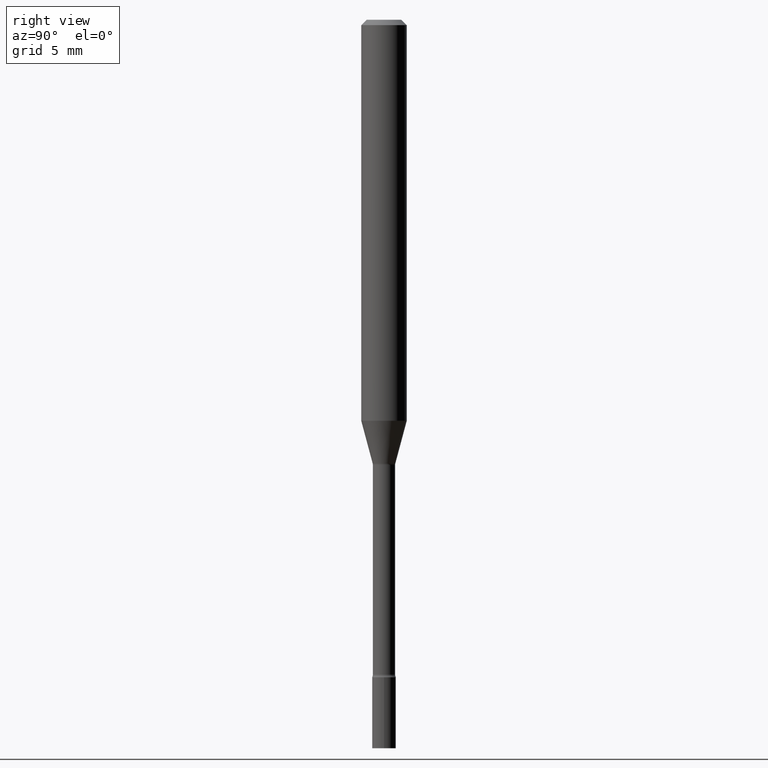
[diagram: clean part render]
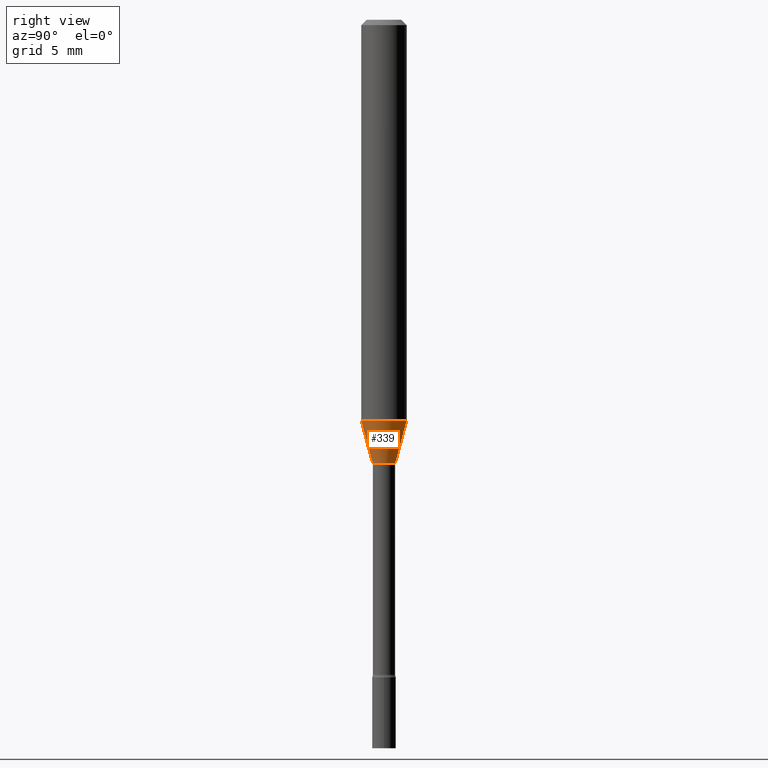
[diagram: same view with one face highlighted and labeled with its STEP entity id]
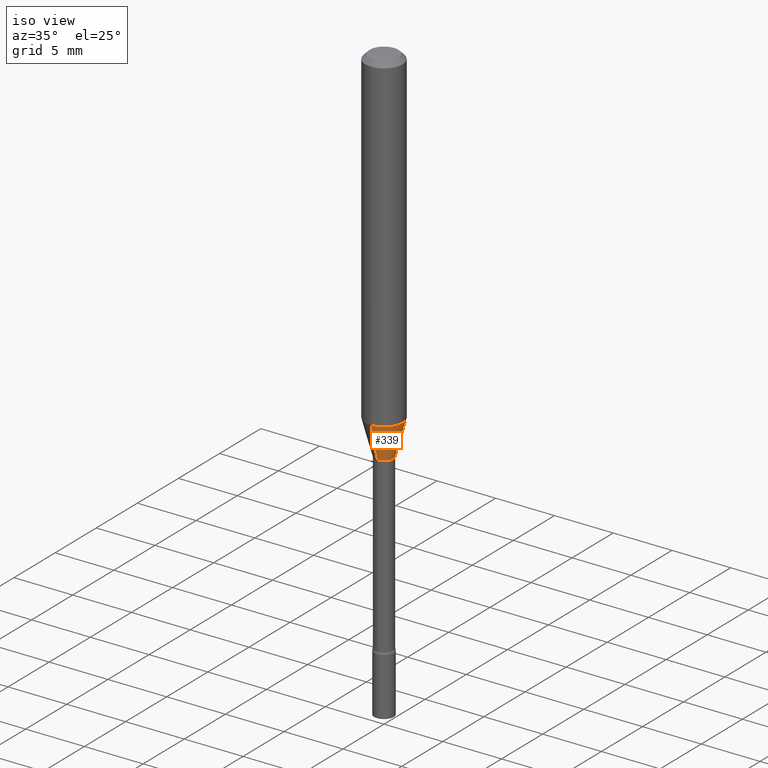
[diagram: same view with one face highlighted and labeled with its STEP entity id]
A machine part, right view. The second image highlights one B-rep face of the part: STEP entity #339.
A second angle (iso view) of the same face is appended — the face is thin or edge-on in the first view.
In plain terms, the highlighted conical surface has half-angle 15 deg.
Its self-contained STEP definition (entity closure, byte-faithful):
#10 = EDGE_CURVE ( 'NONE', #101, #502, #59, .T. ) ;
#11 = DIRECTION ( 'NONE',  ( -2.445446564230640658E-29, 3.491513190587917155E-15, 1.000000000000000000 ) ) ;
#22 = CARTESIAN_POINT ( 'NONE',  ( -4.364351673553646016E-16, -0.06250000000000383027, -1.100760976698174298 ) ) ;
#34 = CONICAL_SURFACE ( 'NONE', #236, 0.03106111260566394444, 0.2617993877991497964 ) ;
#59 = LINE ( 'NONE', #461, #353 ) ;
#74 = LINE ( 'NONE', #106, #374 ) ;
#101 = VERTEX_POINT ( 'NONE', #268 ) ;
#106 = CARTESIAN_POINT ( 'NONE',  ( 2.207024792658396852E-16, 0.03106111260565969090, -1.218092501787273241 ) ) ;
#123 = FACE_OUTER_BOUND ( 'NONE', #337, .T. ) ;
#132 = CARTESIAN_POINT ( 'NONE',  ( 2.691852148505715417E-29, -3.843321469826115367E-15, -1.100760976698174520 ) ) ;
#138 = ORIENTED_EDGE ( 'NONE', *, *, #188, .T. ) ;
#152 = DIRECTION ( 'NONE',  ( 1.839019923739597160E-15, 0.2588190451025245142, 0.9659258262890673130 ) ) ;
#155 = CIRCLE ( 'NONE', #508, 0.06250000000000000000 ) ;
#160 = ORIENTED_EDGE ( 'NONE', *, *, #500, .T. ) ;
#161 = DIRECTION ( 'NONE',  ( -6.982962677686265922E-15, -1.000000000000000000, 4.397537249142380957E-15 ) ) ;
#179 = DIRECTION ( 'NONE',  ( -6.982962677686265922E-15, -1.000000000000000000, 4.370956789862821150E-15 ) ) ;
#188 = EDGE_CURVE ( 'NONE', #212, #424, #74, .T. ) ;
#212 = VERTEX_POINT ( 'NONE', #312 ) ;
#222 = DIRECTION ( 'NONE',  ( -2.445446564230640658E-29, 3.491513190587917155E-15, 1.000000000000000000 ) ) ;
#236 = AXIS2_PLACEMENT_3D ( 'NONE', #364, #11, #161 ) ;
#266 = CIRCLE ( 'NONE', #334, 0.03106111260566394444 ) ;
#268 = CARTESIAN_POINT ( 'NONE',  ( -2.168985900527319414E-16, -0.03106111260566819451, -1.218092501787273019 ) ) ;
#312 = CARTESIAN_POINT ( 'NONE',  ( 3.323958445579646476E-16, 0.03106111260565969090, -1.218092501787273241 ) ) ;
#334 = AXIS2_PLACEMENT_3D ( 'NONE', #418, #222, #382 ) ;
#337 = EDGE_LOOP ( 'NONE', ( #160, #138, #507, #388 ) ) ;
#339 = ADVANCED_FACE ( 'NONE', ( #123 ), #34, .T. ) ;
#353 = VECTOR ( 'NONE', #459, 39.37007874015748143 ) ;
#364 = CARTESIAN_POINT ( 'NONE',  ( 2.978780123410792482E-29, -4.252986037346500323E-15, -1.218092501787273241 ) ) ;
#374 = VECTOR ( 'NONE', #152, 39.37007874015748143 ) ;
#382 = DIRECTION ( 'NONE',  ( -6.982962677686265922E-15, -1.000000000000000000, 4.397537249142380957E-15 ) ) ;
#388 = ORIENTED_EDGE ( 'NONE', *, *, #10, .F. ) ;
#418 = CARTESIAN_POINT ( 'NONE',  ( 2.978780123410792482E-29, -4.252986037346500323E-15, -1.218092501787273241 ) ) ;
#424 = VERTEX_POINT ( 'NONE', #501 ) ;
#450 = DIRECTION ( 'NONE',  ( -2.445446564230640658E-29, 3.491513190587917155E-15, 1.000000000000000000 ) ) ;
#459 = DIRECTION ( 'NONE',  ( -1.807323732225326984E-15, -0.2588190451025177419, 0.9659258262890690894 ) ) ;
#461 = CARTESIAN_POINT ( 'NONE',  ( -2.168985900527319414E-16, -0.03106111260566819451, -1.218092501787273019 ) ) ;
#500 = EDGE_CURVE ( 'NONE', #101, #212, #266, .T. ) ;
#501 = CARTESIAN_POINT ( 'NONE',  ( 4.440892098500895360E-16, 0.06249999999999616279, -1.100760976698174742 ) ) ;
#502 = VERTEX_POINT ( 'NONE', #22 ) ;
#507 = ORIENTED_EDGE ( 'NONE', *, *, #515, .F. ) ;
#508 = AXIS2_PLACEMENT_3D ( 'NONE', #132, #450, #179 ) ;
#515 = EDGE_CURVE ( 'NONE', #502, #424, #155, .T. ) ;